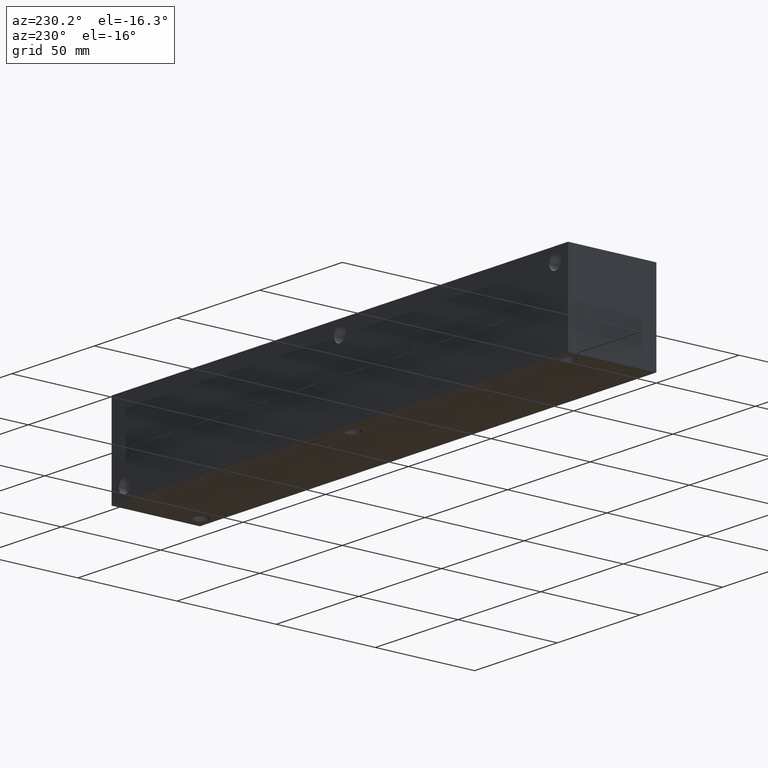
[diagram: clean part render]
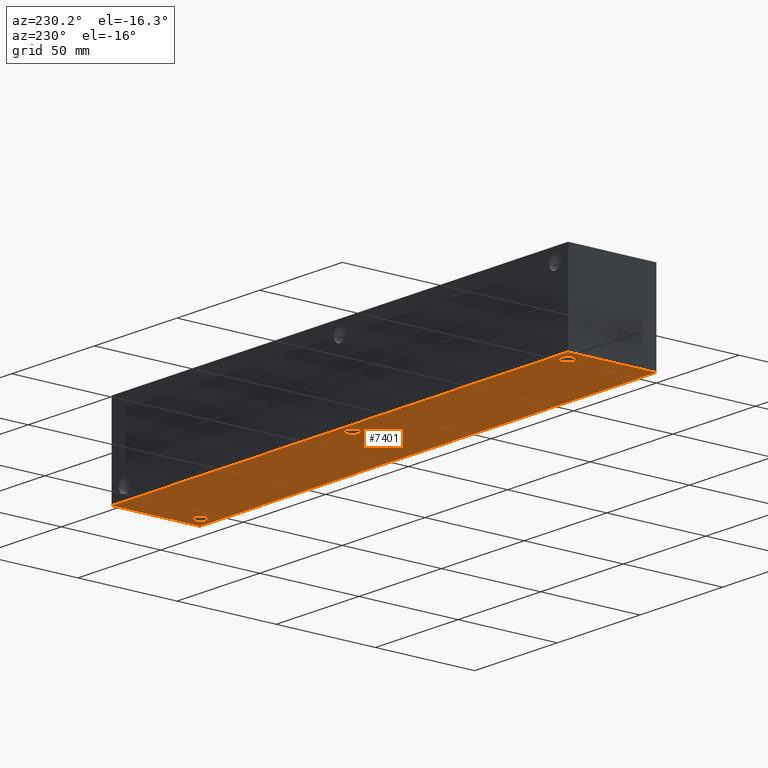
[diagram: same view with one face highlighted and labeled with its STEP entity id]
A machine part, auxiliary view. The second image highlights one B-rep face of the part: STEP entity #7401.
In plain terms, the highlighted planar face has unit normal (0, 0, 1).
Its self-contained STEP definition (entity closure, byte-faithful):
#143=CIRCLE('',#7735,3.5687);
#144=CIRCLE('',#7737,3.5687);
#145=CIRCLE('',#7739,3.5687);
#239=FACE_BOUND('',#1281,.T.);
#240=FACE_BOUND('',#1282,.T.);
#241=FACE_BOUND('',#1283,.T.);
#463=PLANE('',#7799);
#840=FACE_OUTER_BOUND('',#1280,.T.);
#1280=EDGE_LOOP('',(#6610,#6611,#6612,#6613));
#1281=EDGE_LOOP('',(#6614));
#1282=EDGE_LOOP('',(#6615));
#1283=EDGE_LOOP('',(#6616));
#1965=LINE('',#12720,#2654);
#1968=LINE('',#12725,#2657);
#1970=LINE('',#12729,#2659);
#1972=LINE('',#12732,#2661);
#2654=VECTOR('',#9241,10.);
#2657=VECTOR('',#9246,10.);
#2659=VECTOR('',#9250,10.);
#2661=VECTOR('',#9254,10.);
#3523=VERTEX_POINT('',#12598);
#3524=VERTEX_POINT('',#12602);
#3525=VERTEX_POINT('',#12606);
#3562=VERTEX_POINT('',#12718);
#3563=VERTEX_POINT('',#12719);
#3564=VERTEX_POINT('',#12724);
#3565=VERTEX_POINT('',#12728);
#4522=EDGE_CURVE('',#3523,#3523,#143,.T.);
#4524=EDGE_CURVE('',#3524,#3524,#144,.T.);
#4526=EDGE_CURVE('',#3525,#3525,#145,.T.);
#4575=EDGE_CURVE('',#3562,#3563,#1965,.T.);
#4578=EDGE_CURVE('',#3564,#3562,#1968,.T.);
#4580=EDGE_CURVE('',#3565,#3564,#1970,.T.);
#4582=EDGE_CURVE('',#3563,#3565,#1972,.T.);
#6610=ORIENTED_EDGE('',*,*,#4582,.F.);
#6611=ORIENTED_EDGE('',*,*,#4575,.F.);
#6612=ORIENTED_EDGE('',*,*,#4578,.F.);
#6613=ORIENTED_EDGE('',*,*,#4580,.F.);
#6614=ORIENTED_EDGE('',*,*,#4522,.T.);
#6615=ORIENTED_EDGE('',*,*,#4524,.T.);
#6616=ORIENTED_EDGE('',*,*,#4526,.T.);
#7401=ADVANCED_FACE('',(#840,#239,#240,#241),#463,.F.);
#7735=AXIS2_PLACEMENT_3D('',#12600,#9101,#9102);
#7737=AXIS2_PLACEMENT_3D('',#12604,#9106,#9107);
#7739=AXIS2_PLACEMENT_3D('',#12608,#9111,#9112);
#7799=AXIS2_PLACEMENT_3D('',#12734,#9257,#9258);
#9101=DIRECTION('center_axis',(0.,0.,1.));
#9102=DIRECTION('ref_axis',(1.,0.,0.));
#9106=DIRECTION('center_axis',(0.,0.,1.));
#9107=DIRECTION('ref_axis',(1.,0.,0.));
#9111=DIRECTION('center_axis',(0.,0.,1.));
#9112=DIRECTION('ref_axis',(1.,0.,0.));
#9241=DIRECTION('',(0.,-1.,0.));
#9246=DIRECTION('',(-1.,0.,0.));
#9250=DIRECTION('',(0.,1.,0.));
#9254=DIRECTION('',(1.,0.,0.));
#9257=DIRECTION('center_axis',(0.,0.,1.));
#9258=DIRECTION('ref_axis',(1.,0.,0.));
#12598=CARTESIAN_POINT('',(134.5565,38.1,0.));
#12600=CARTESIAN_POINT('Origin',(138.1252,38.1,0.));
#12602=CARTESIAN_POINT('',(4.3561,38.1,0.));
#12604=CARTESIAN_POINT('Origin',(7.9248,38.1,0.));
#12606=CARTESIAN_POINT('',(264.7061,6.35,0.));
#12608=CARTESIAN_POINT('Origin',(268.2748,6.35,0.));
#12718=CARTESIAN_POINT('',(0.,44.45,0.));
#12719=CARTESIAN_POINT('',(0.,0.,0.));
#12720=CARTESIAN_POINT('',(0.,44.45,0.));
#12724=CARTESIAN_POINT('',(276.225,44.45,0.));
#12725=CARTESIAN_POINT('',(276.225,44.45,0.));
#12728=CARTESIAN_POINT('',(276.225,0.,0.));
#12729=CARTESIAN_POINT('',(276.225,0.,0.));
#12732=CARTESIAN_POINT('',(0.,0.,0.));
#12734=CARTESIAN_POINT('Origin',(138.1125,22.225,0.));